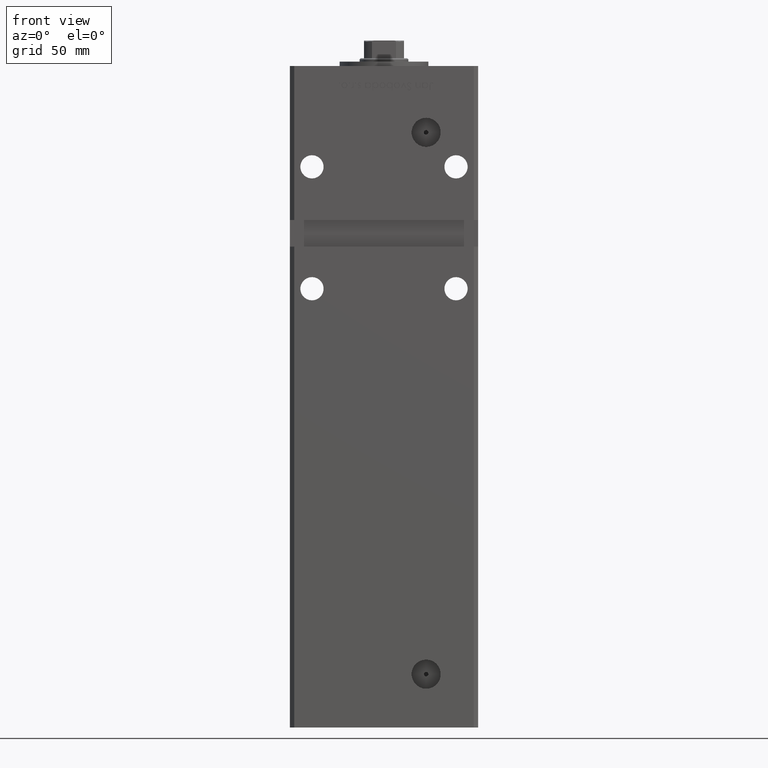
[diagram: clean part render]
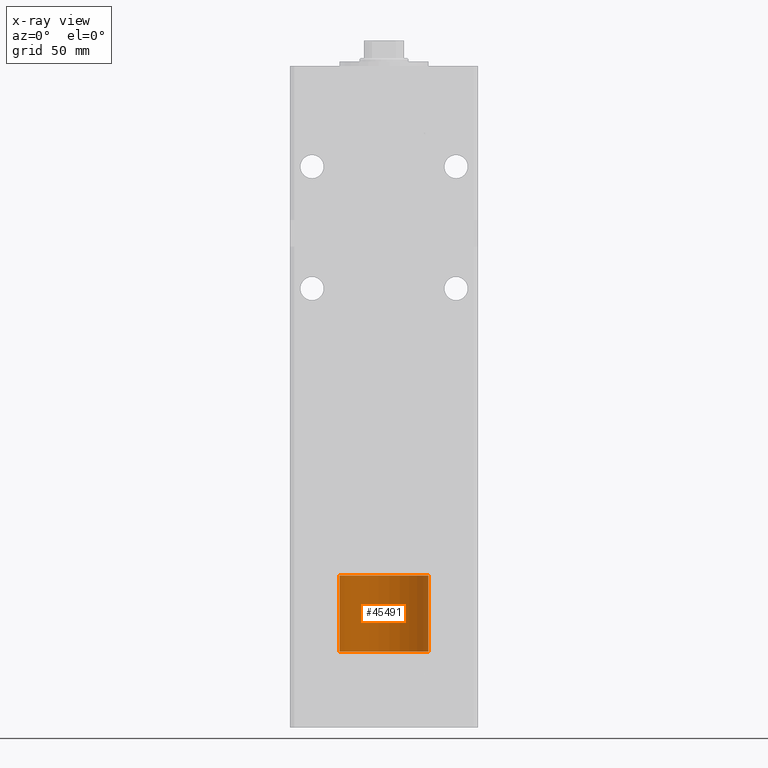
[diagram: x-ray — body ghosted, one internal face saturated and labeled with its STEP entity id]
A machine part, front view, then the same camera in x-ray: the body is ghosted and one INTERNAL B-rep face — a face not visible from any outside direction — is saturated and labeled: STEP entity #45491.
In plain terms, the highlighted cylindrical surface (partial cylindrical patch) has radius 20 mm, axis along (-0, -0, -1).
Its self-contained STEP definition (entity closure, byte-faithful):
#344 = CARTESIAN_POINT ( 'NONE',  ( 0.000000000000000000, 0.000000000000000000, 34.25000000000000000 ) ) ;
#825 = CARTESIAN_POINT ( 'NONE',  ( -20.00000000000000000, 0.000000000000000000, 34.25000000000000000 ) ) ;
#957 = DIRECTION ( 'NONE',  ( 1.000000000000000000, 0.000000000000000000, 0.000000000000000000 ) ) ;
#8232 = EDGE_CURVE ( 'NONE', #35168, #35579, #31139, .T. ) ;
#9373 = VECTOR ( 'NONE', #46049, 1000.000000000000000 ) ;
#11423 = CARTESIAN_POINT ( 'NONE',  ( 20.00000000000000000, 2.449293598294706513E-15, 34.25000000000000000 ) ) ;
#12094 = AXIS2_PLACEMENT_3D ( 'NONE', #28166, #23599, #48590 ) ;
#14272 = EDGE_LOOP ( 'NONE', ( #30027, #29166, #48422, #52875 ) ) ;
#17920 = DIRECTION ( 'NONE',  ( 0.000000000000000000, 0.000000000000000000, 1.000000000000000000 ) ) ;
#21838 = LINE ( 'NONE', #825, #9373 ) ;
#22636 = VERTEX_POINT ( 'NONE', #50880 ) ;
#23599 = DIRECTION ( 'NONE',  ( -0.000000000000000000, -0.000000000000000000, -1.000000000000000000 ) ) ;
#24392 = CYLINDRICAL_SURFACE ( 'NONE', #12094, 20.00000000000000000 ) ;
#25079 = AXIS2_PLACEMENT_3D ( 'NONE', #29782, #17920, #957 ) ;
#25921 = CIRCLE ( 'NONE', #25079, 20.00000000000000000 ) ;
#28166 = CARTESIAN_POINT ( 'NONE',  ( 0.000000000000000000, 0.000000000000000000, 34.25000000000000000 ) ) ;
#28894 = DIRECTION ( 'NONE',  ( 0.000000000000000000, 0.000000000000000000, 1.000000000000000000 ) ) ;
#29166 = ORIENTED_EDGE ( 'NONE', *, *, #45285, .T. ) ;
#29782 = CARTESIAN_POINT ( 'NONE',  ( 0.000000000000000000, 0.000000000000000000, 0.000000000000000000 ) ) ;
#30027 = ORIENTED_EDGE ( 'NONE', *, *, #8232, .F. ) ;
#31139 = CIRCLE ( 'NONE', #51734, 20.00000000000000000 ) ;
#34706 = VERTEX_POINT ( 'NONE', #43558 ) ;
#35168 = VERTEX_POINT ( 'NONE', #11423 ) ;
#35579 = VERTEX_POINT ( 'NONE', #47385 ) ;
#36207 = VECTOR ( 'NONE', #50756, 1000.000000000000000 ) ;
#39494 = LINE ( 'NONE', #42989, #36207 ) ;
#41168 = EDGE_CURVE ( 'NONE', #35579, #34706, #21838, .T. ) ;
#42989 = CARTESIAN_POINT ( 'NONE',  ( 20.00000000000000000, 2.449293598294706513E-15, 34.25000000000000000 ) ) ;
#43558 = CARTESIAN_POINT ( 'NONE',  ( -20.00000000000000000, 0.000000000000000000, 0.000000000000000000 ) ) ;
#45285 = EDGE_CURVE ( 'NONE', #35168, #22636, #39494, .T. ) ;
#45491 = ADVANCED_FACE ( 'NONE', ( #52346 ), #24392, .T. ) ;
#46049 = DIRECTION ( 'NONE',  ( -0.000000000000000000, -0.000000000000000000, -1.000000000000000000 ) ) ;
#47385 = CARTESIAN_POINT ( 'NONE',  ( -20.00000000000000000, 0.000000000000000000, 34.25000000000000000 ) ) ;
#48422 = ORIENTED_EDGE ( 'NONE', *, *, #50086, .T. ) ;
#48590 = DIRECTION ( 'NONE',  ( -1.000000000000000000, 0.000000000000000000, 0.000000000000000000 ) ) ;
#49053 = DIRECTION ( 'NONE',  ( 1.000000000000000000, 0.000000000000000000, 0.000000000000000000 ) ) ;
#50086 = EDGE_CURVE ( 'NONE', #22636, #34706, #25921, .T. ) ;
#50756 = DIRECTION ( 'NONE',  ( -0.000000000000000000, -0.000000000000000000, -1.000000000000000000 ) ) ;
#50880 = CARTESIAN_POINT ( 'NONE',  ( 20.00000000000000000, 2.449293598294706513E-15, 0.000000000000000000 ) ) ;
#51734 = AXIS2_PLACEMENT_3D ( 'NONE', #344, #28894, #49053 ) ;
#52346 = FACE_OUTER_BOUND ( 'NONE', #14272, .T. ) ;
#52875 = ORIENTED_EDGE ( 'NONE', *, *, #41168, .F. ) ;